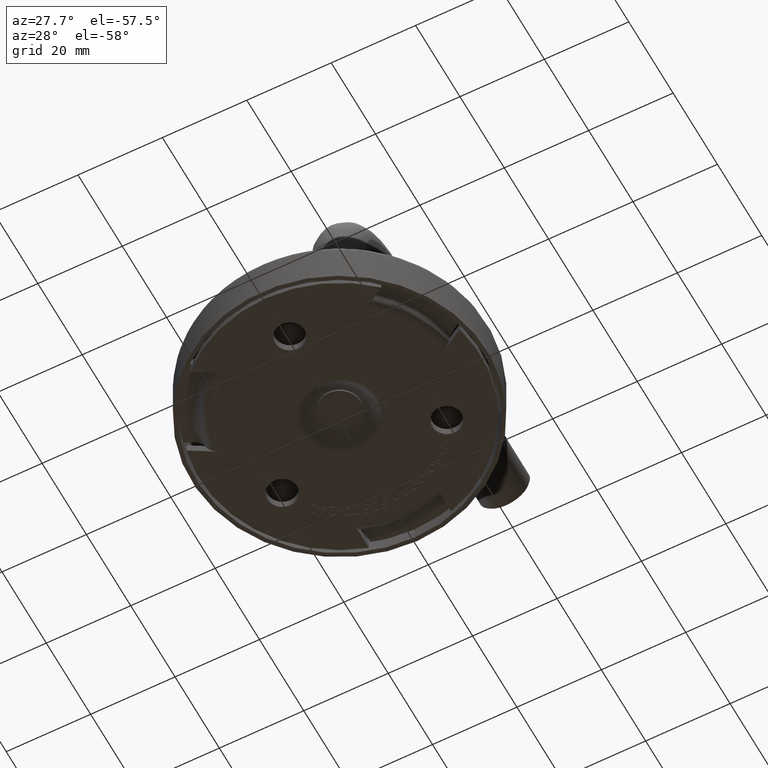
[diagram: clean part render]
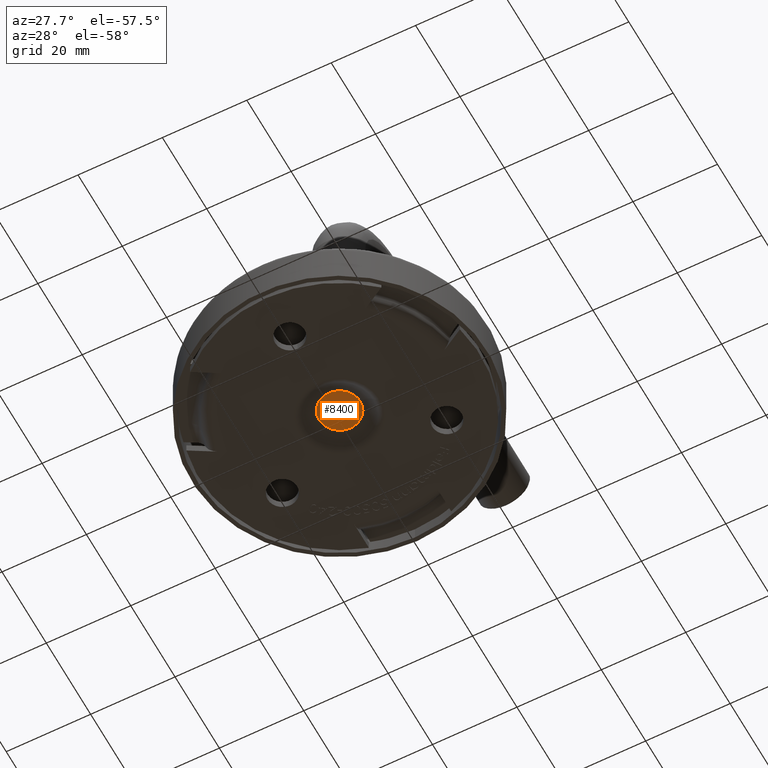
[diagram: same view with one face highlighted and labeled with its STEP entity id]
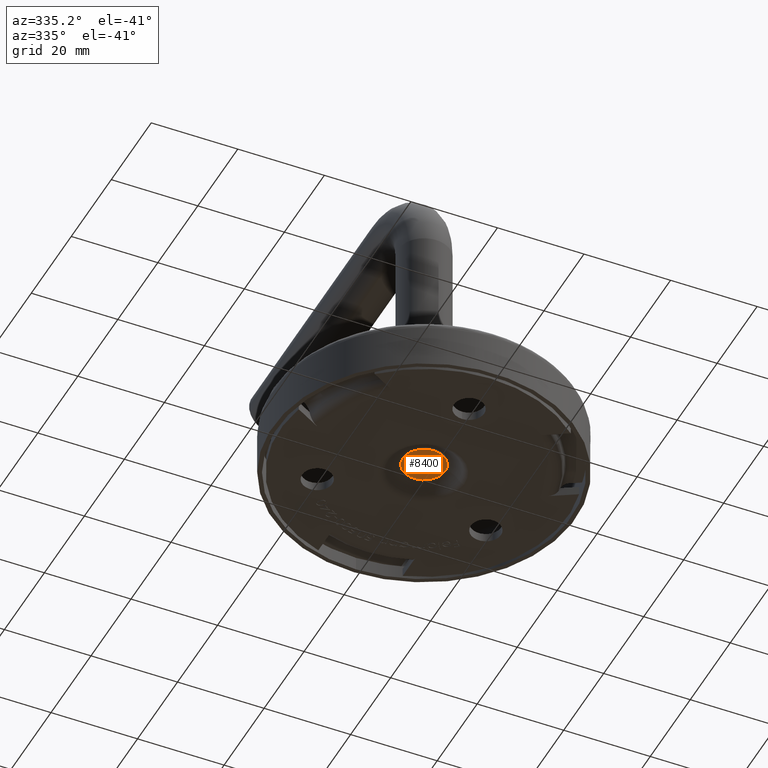
[diagram: same view with one face highlighted and labeled with its STEP entity id]
A machine part, auxiliary view. The second image highlights one B-rep face of the part: STEP entity #8400.
A second angle (auxiliary view) of the same face is appended — the face is thin or edge-on in the first view.
In plain terms, the highlighted planar face has unit normal (0, 0, 1).
Its self-contained STEP definition (entity closure, byte-faithful):
#1659 = VERTEX_POINT ( 'NONE', #7628 ) ;
#2553 = DIRECTION ( 'NONE',  ( 1.000000000000000000, 0.0000000000000000000, -0.0000000000000000000 ) ) ;
#3073 = CIRCLE ( 'NONE', #9501, 4.900000000000001200 ) ;
#5193 = AXIS2_PLACEMENT_3D ( 'NONE', #13620, #14928, #2553 ) ;
#6112 = ORIENTED_EDGE ( 'NONE', *, *, #8818, .T. ) ;
#6172 = PLANE ( 'NONE',  #5193 ) ;
#7195 = CARTESIAN_POINT ( 'NONE',  ( 0.0000000000000000000, 0.0000000000000000000, 0.0000000000000000000 ) ) ;
#7628 = CARTESIAN_POINT ( 'NONE',  ( -4.900000000000001200, 0.0000000000000000000, 0.0000000000000000000 ) ) ;
#8400 = ADVANCED_FACE ( 'NONE', ( #11303 ), #6172, .F. ) ;
#8818 = EDGE_CURVE ( 'NONE', #1659, #1659, #3073, .T. ) ;
#9501 = AXIS2_PLACEMENT_3D ( 'NONE', #7195, #15701, #10748 ) ;
#10748 = DIRECTION ( 'NONE',  ( -1.000000000000000000, 0.0000000000000000000, 0.0000000000000000000 ) ) ;
#11303 = FACE_OUTER_BOUND ( 'NONE', #15181, .T. ) ;
#13620 = CARTESIAN_POINT ( 'NONE',  ( 0.0000000000000000000, 0.0000000000000000000, 0.0000000000000000000 ) ) ;
#14928 = DIRECTION ( 'NONE',  ( 0.0000000000000000000, 0.0000000000000000000, 1.000000000000000000 ) ) ;
#15181 = EDGE_LOOP ( 'NONE', ( #6112 ) ) ;
#15701 = DIRECTION ( 'NONE',  ( 0.0000000000000000000, 0.0000000000000000000, -1.000000000000000000 ) ) ;